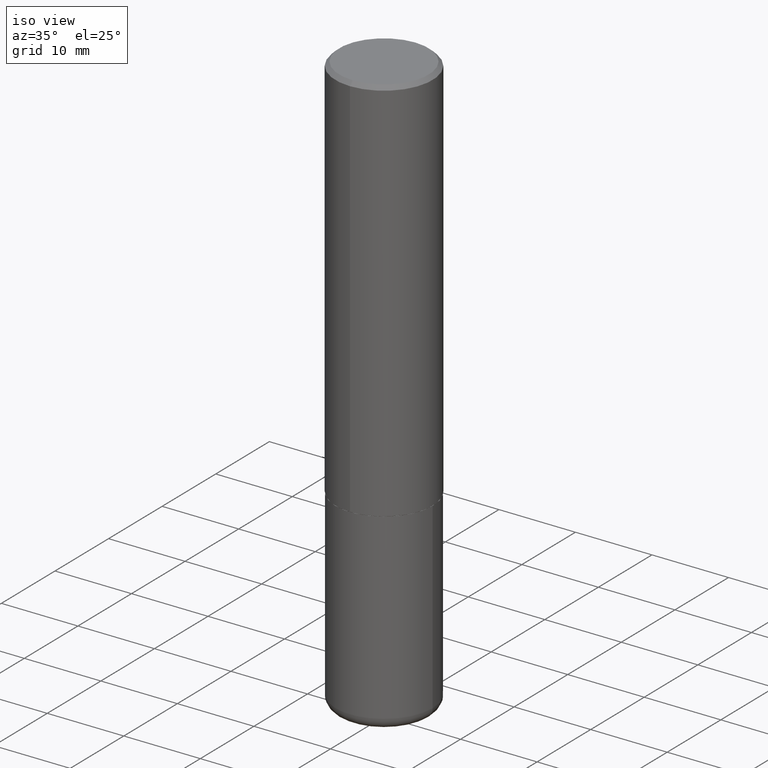
[diagram: clean part render]
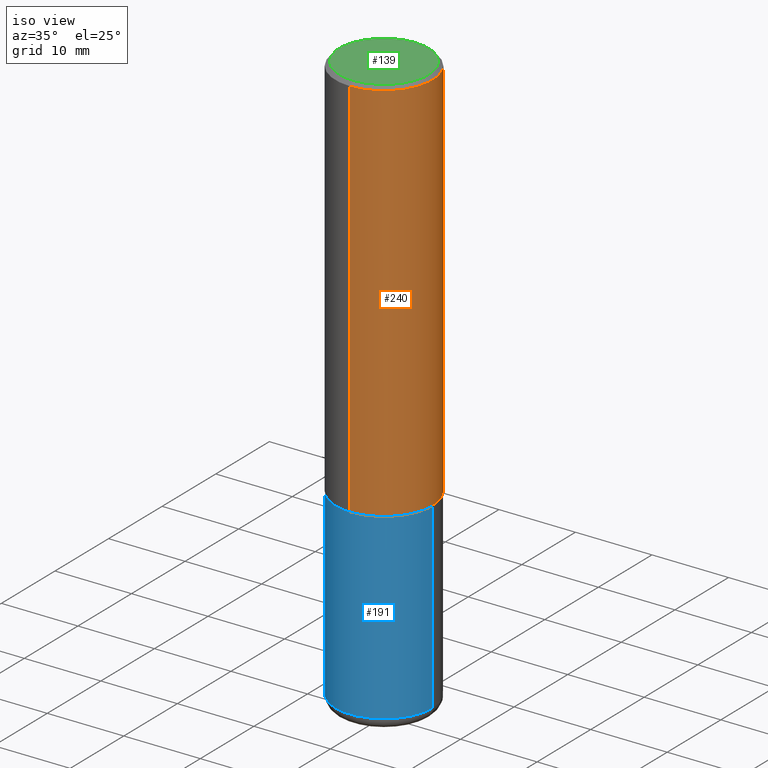
[diagram: same view with three faces highlighted in distinct colors, each labeled with its STEP entity id]
A machine part, iso view with three faces highlighted in distinct colors.
Their STEP definitions:

[orange] entity #240 — the highlighted cylindrical surface (partial cylindrical patch) has radius 6.35 mm, axis along (-0, 0, 1).
#2 = EDGE_LOOP ( 'NONE', ( #158, #3, #215, #124 ) ) ;
#3 = ORIENTED_EDGE ( 'NONE', *, *, #235, .T. ) ;
#27 = CIRCLE ( 'NONE', #238, 0.2500000000000002220 ) ;
#50 = VERTEX_POINT ( 'NONE', #396 ) ;
#57 = EDGE_CURVE ( 'NONE', #282, #125, #109, .T. ) ;
#60 = CARTESIAN_POINT ( 'NONE',  ( 1.776356839400276497E-15, 0.2499999999999933109, -1.999000000000000998 ) ) ;
#68 = AXIS2_PLACEMENT_3D ( 'NONE', #398, #209, #368 ) ;
#75 = CIRCLE ( 'NONE', #271, 0.2500000000000000000 ) ;
#76 = CARTESIAN_POINT ( 'NONE',  ( -1.745740669421567467E-15, -0.2500000000000001110, 8.724820248720141809E-16 ) ) ;
#103 = EDGE_CURVE ( 'NONE', #282, #381, #27, .T. ) ;
#107 = DIRECTION ( 'NONE',  ( -2.446553427429748076E-29, 3.489928099488054752E-15, 1.000000000000000000 ) ) ;
#109 = LINE ( 'NONE', #76, #364 ) ;
#124 = ORIENTED_EDGE ( 'NONE', *, *, #57, .F. ) ;
#125 = VERTEX_POINT ( 'NONE', #132 ) ;
#132 = CARTESIAN_POINT ( 'NONE',  ( -1.715124499442882299E-15, -0.2500000000000000555, -0.01999999999999918510 ) ) ;
#143 = CARTESIAN_POINT ( 'NONE',  ( 1.776356839400251254E-15, 0.2500000000000001110, -8.724820248720141809E-16 ) ) ;
#145 = EDGE_CURVE ( 'NONE', #125, #50, #75, .T. ) ;
#158 = ORIENTED_EDGE ( 'NONE', *, *, #103, .T. ) ;
#166 = DIRECTION ( 'NONE',  ( -2.446553427429748076E-29, 3.489928099488054752E-15, 1.000000000000000000 ) ) ;
#195 = CARTESIAN_POINT ( 'NONE',  ( 4.890660301432066520E-29, -6.976366270876620972E-15, -1.999000000000000110 ) ) ;
#209 = DIRECTION ( 'NONE',  ( -2.446553427429748076E-29, 3.489928099488054752E-15, 1.000000000000000000 ) ) ;
#215 = ORIENTED_EDGE ( 'NONE', *, *, #145, .F. ) ;
#230 = DIRECTION ( 'NONE',  ( -6.982962677686265922E-15, -1.000000000000000000, 3.483106191921935554E-15 ) ) ;
#234 = DIRECTION ( 'NONE',  ( -2.446553427429748076E-29, 3.489928099488054357E-15, 1.000000000000000000 ) ) ;
#235 = EDGE_CURVE ( 'NONE', #381, #50, #338, .T. ) ;
#238 = AXIS2_PLACEMENT_3D ( 'NONE', #195, #166, #394 ) ;
#240 = ADVANCED_FACE ( 'NONE', ( #243 ), #342, .T. ) ;
#243 = FACE_OUTER_BOUND ( 'NONE', #2, .T. ) ;
#267 = CARTESIAN_POINT ( 'NONE',  ( 4.893106854859509639E-31, -6.979856198976127351E-17, -0.02000000000000005593 ) ) ;
#271 = AXIS2_PLACEMENT_3D ( 'NONE', #267, #107, #230 ) ;
#282 = VERTEX_POINT ( 'NONE', #399 ) ;
#338 = LINE ( 'NONE', #143, #356 ) ;
#342 = CYLINDRICAL_SURFACE ( 'NONE', #68, 0.2500000000000001110 ) ;
#356 = VECTOR ( 'NONE', #234, 39.37007874015748143 ) ;
#359 = DIRECTION ( 'NONE',  ( -2.446553427429748076E-29, 3.489928099488054357E-15, 1.000000000000000000 ) ) ;
#364 = VECTOR ( 'NONE', #359, 39.37007874015748143 ) ;
#368 = DIRECTION ( 'NONE',  ( -6.982962677686266711E-15, -1.000000000000000000, 3.489928099488055146E-15 ) ) ;
#381 = VERTEX_POINT ( 'NONE', #60 ) ;
#394 = DIRECTION ( 'NONE',  ( -6.982962677686266711E-15, -1.000000000000000000, 3.278217592397113101E-15 ) ) ;
#396 = CARTESIAN_POINT ( 'NONE',  ( 1.745740669421566875E-15, 0.2499999999999999167, -0.02000000000000092676 ) ) ;
#398 = CARTESIAN_POINT ( 'NONE',  ( 0.000000000000000000, 0.000000000000000000, 0.000000000000000000 ) ) ;
#399 = CARTESIAN_POINT ( 'NONE',  ( -1.745740669421519149E-15, -0.2500000000000072164, -1.998999999999999444 ) ) ;

[blue] entity #191 — the highlighted cylindrical surface (partial cylindrical patch) has radius 6.35 mm, axis along (-0, 0, 1).
#7 = LINE ( 'NONE', #365, #414 ) ;
#8 = LINE ( 'NONE', #391, #217 ) ;
#11 = AXIS2_PLACEMENT_3D ( 'NONE', #164, #330, #418 ) ;
#17 = CARTESIAN_POINT ( 'NONE',  ( 0.2500000000000000000, -8.728703347107858632E-15, -2.000000000000000444 ) ) ;
#49 = EDGE_CURVE ( 'NONE', #377, #185, #8, .T. ) ;
#56 = EDGE_LOOP ( 'NONE', ( #265, #335, #411, #162 ) ) ;
#61 = CIRCLE ( 'NONE', #379, 0.2500000000000000000 ) ;
#64 = EDGE_CURVE ( 'NONE', #96, #190, #7, .T. ) ;
#81 = CARTESIAN_POINT ( 'NONE',  ( 4.890937612370273754E-29, -6.982962677686291954E-15, -2.000000000000000444 ) ) ;
#92 = AXIS2_PLACEMENT_3D ( 'NONE', #211, #236, #144 ) ;
#96 = VERTEX_POINT ( 'NONE', #105 ) ;
#105 = CARTESIAN_POINT ( 'NONE',  ( 0.2500000000000000000, -1.201069580562041945E-14, -2.940000000000000835 ) ) ;
#113 = DIRECTION ( 'NONE',  ( -2.445468806185136597E-29, 3.491481338843145583E-15, 1.000000000000000000 ) ) ;
#123 = EDGE_CURVE ( 'NONE', #377, #96, #224, .T. ) ;
#144 = DIRECTION ( 'NONE',  ( 1.000000000000000000, -6.982962677686266711E-15, 4.876176775795935793E-29 ) ) ;
#162 = ORIENTED_EDGE ( 'NONE', *, *, #281, .F. ) ;
#164 = CARTESIAN_POINT ( 'NONE',  ( 7.189678290184302760E-29, -1.026495513619885119E-14, -2.940000000000000835 ) ) ;
#174 = CARTESIAN_POINT ( 'NONE',  ( -0.2500000000000000000, -6.847602067542320320E-15, -2.000000000000000444 ) ) ;
#185 = VERTEX_POINT ( 'NONE', #174 ) ;
#190 = VERTEX_POINT ( 'NONE', #17 ) ;
#191 = ADVANCED_FACE ( 'NONE', ( #307 ), #336, .T. ) ;
#201 = DIRECTION ( 'NONE',  ( -2.445468806185136877E-29, 3.491481338843145188E-15, 1.000000000000000000 ) ) ;
#211 = CARTESIAN_POINT ( 'NONE',  ( 0.000000000000000000, 0.000000000000000000, 0.000000000000000000 ) ) ;
#217 = VECTOR ( 'NONE', #201, 39.37007874015748143 ) ;
#224 = CIRCLE ( 'NONE', #11, 0.2500000000000000555 ) ;
#236 = DIRECTION ( 'NONE',  ( -2.445468806185136597E-29, 3.491481338843145583E-15, 1.000000000000000000 ) ) ;
#265 = ORIENTED_EDGE ( 'NONE', *, *, #49, .F. ) ;
#274 = DIRECTION ( 'NONE',  ( 1.000000000000000000, -6.982962677686266711E-15, 0.000000000000000000 ) ) ;
#281 = EDGE_CURVE ( 'NONE', #185, #190, #61, .T. ) ;
#294 = DIRECTION ( 'NONE',  ( -2.445468806185136877E-29, 3.491481338843145188E-15, 1.000000000000000000 ) ) ;
#307 = FACE_OUTER_BOUND ( 'NONE', #56, .T. ) ;
#315 = CARTESIAN_POINT ( 'NONE',  ( -0.2500000000000000000, -8.488598296798600727E-15, -2.940000000000000835 ) ) ;
#330 = DIRECTION ( 'NONE',  ( -2.445468806185136597E-29, 3.491481338843145583E-15, 1.000000000000000000 ) ) ;
#335 = ORIENTED_EDGE ( 'NONE', *, *, #123, .T. ) ;
#336 = CYLINDRICAL_SURFACE ( 'NONE', #92, 0.2500000000000000000 ) ;
#365 = CARTESIAN_POINT ( 'NONE',  ( 0.2500000000000000000, -1.745740669421566678E-15, 1.219044193948983948E-29 ) ) ;
#377 = VERTEX_POINT ( 'NONE', #315 ) ;
#379 = AXIS2_PLACEMENT_3D ( 'NONE', #81, #113, #274 ) ;
#391 = CARTESIAN_POINT ( 'NONE',  ( -0.2500000000000000000, 1.776356839400250465E-15, -1.229733772563726445E-29 ) ) ;
#411 = ORIENTED_EDGE ( 'NONE', *, *, #64, .T. ) ;
#414 = VECTOR ( 'NONE', #294, 39.37007874015748143 ) ;
#418 = DIRECTION ( 'NONE',  ( 1.000000000000000000, -6.982962677686269077E-15, 0.000000000000000000 ) ) ;

[green] entity #139 — the highlighted planar face has unit normal (0, -0, -1).
#41 = EDGE_CURVE ( 'NONE', #321, #192, #142, .T. ) ;
#42 = AXIS2_PLACEMENT_3D ( 'NONE', #223, #69, #140 ) ;
#69 = DIRECTION ( 'NONE',  ( -2.446553427429748076E-29, 3.489928099488054752E-15, 1.000000000000000000 ) ) ;
#91 = DIRECTION ( 'NONE',  ( -6.982962677686265922E-15, -1.000000000000000000, 3.489928099488054752E-15 ) ) ;
#130 = ORIENTED_EDGE ( 'NONE', *, *, #409, .T. ) ;
#137 = DIRECTION ( 'NONE',  ( 6.982962677686265922E-15, 1.000000000000000000, -3.489928099488054357E-15 ) ) ;
#139 = ADVANCED_FACE ( 'NONE', ( #295 ), #361, .F. ) ;
#140 = DIRECTION ( 'NONE',  ( -6.982962677686265922E-15, -1.000000000000000000, 3.489928099488054752E-15 ) ) ;
#142 = CIRCLE ( 'NONE', #42, 0.2299999999999998712 ) ;
#150 = EDGE_LOOP ( 'NONE', ( #218, #130 ) ) ;
#192 = VERTEX_POINT ( 'NONE', #305 ) ;
#218 = ORIENTED_EDGE ( 'NONE', *, *, #41, .T. ) ;
#221 = CARTESIAN_POINT ( 'NONE',  ( -2.915340090494939621E-45, 4.158636875578508875E-31, 1.191611046711405985E-16 ) ) ;
#223 = CARTESIAN_POINT ( 'NONE',  ( -2.915340090494939621E-45, 4.158636875578508875E-31, 1.191611046711405985E-16 ) ) ;
#277 = AXIS2_PLACEMENT_3D ( 'NONE', #332, #300, #137 ) ;
#278 = AXIS2_PLACEMENT_3D ( 'NONE', #221, #347, #91 ) ;
#279 = CARTESIAN_POINT ( 'NONE',  ( 1.675911042644703577E-15, 0.2299999999999998712, -6.835223582111114461E-16 ) ) ;
#295 = FACE_OUTER_BOUND ( 'NONE', #150, .T. ) ;
#300 = DIRECTION ( 'NONE',  ( 2.446553427429747796E-29, -3.489928099488054357E-15, -1.000000000000000000 ) ) ;
#305 = CARTESIAN_POINT ( 'NONE',  ( -1.646519519465166573E-15, -0.2299999999999998712, 9.218445675533926431E-16 ) ) ;
#321 = VERTEX_POINT ( 'NONE', #279 ) ;
#332 = CARTESIAN_POINT ( 'NONE',  ( 1.606081415867840278E-15, 0.2299999999999998712, -7.431029105466818439E-16 ) ) ;
#347 = DIRECTION ( 'NONE',  ( -2.446553427429748076E-29, 3.489928099488054752E-15, 1.000000000000000000 ) ) ;
#357 = CIRCLE ( 'NONE', #278, 0.2299999999999998712 ) ;
#361 = PLANE ( 'NONE',  #277 ) ;
#409 = EDGE_CURVE ( 'NONE', #192, #321, #357, .T. ) ;